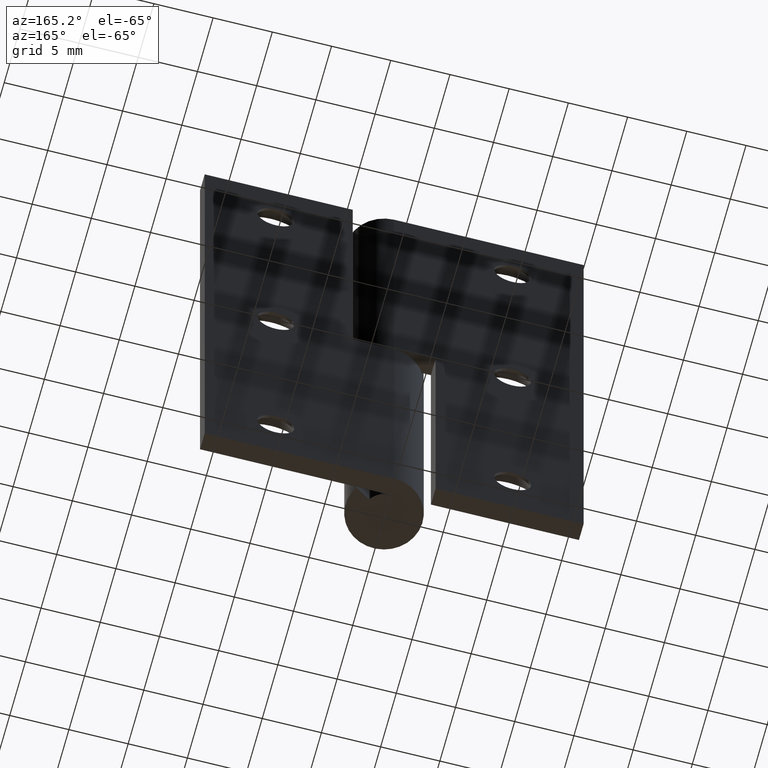
[diagram: clean part render]
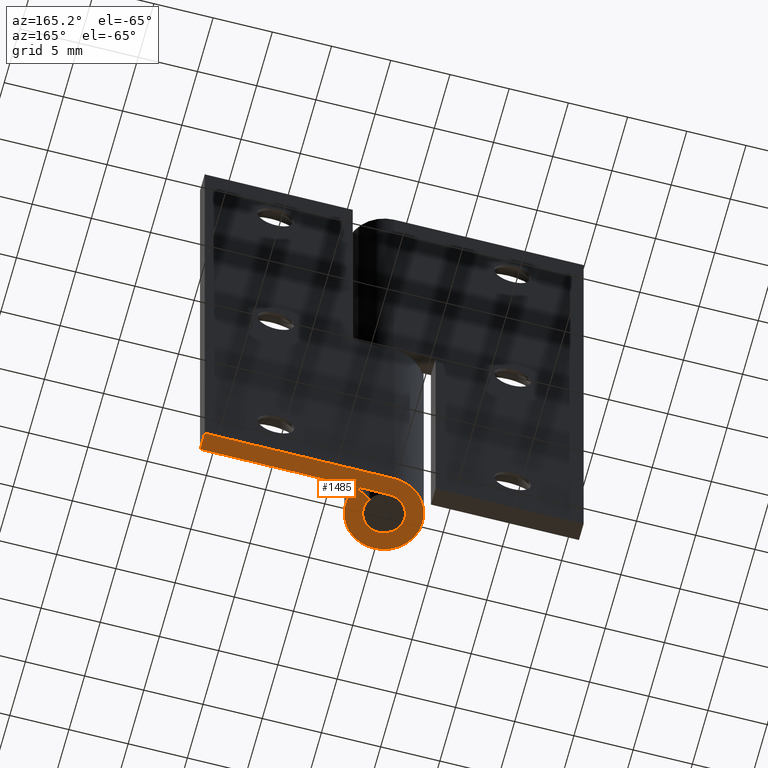
[diagram: same view with one face highlighted and labeled with its STEP entity id]
A machine part, auxiliary view. The second image highlights one B-rep face of the part: STEP entity #1485.
In plain terms, the highlighted face is a freeform B-spline surface patch.
Its self-contained STEP definition (entity closure, byte-faithful):
#1408=CARTESIAN_POINT('',(-4.211426801489212,-3.574232181956067,0.0));
#1409=CARTESIAN_POINT('',(16.961532714450279,-3.574232181956067,0.0));
#1410=CARTESIAN_POINT('',(-4.211426801489212,3.574654095844021,0.0));
#1411=CARTESIAN_POINT('',(16.961532714450279,3.574654095844021,0.0));
#1412=B_SPLINE_SURFACE_WITH_KNOTS('',1,1,((#1408,#1410),(#1409,#1411)),.UNSPECIFIED.,.F.,.F.,.U.,(2,2),(2,2),(0.0,21.172959515939489),(0.0,7.148886277800087),.UNSPECIFIED.);
#1413=CARTESIAN_POINT('',(1.491499582942338,0.915384615384612,0.0));
#1414=VERTEX_POINT('',#1413);
#1415=CARTESIAN_POINT('',(0.0,1.750000000000000,0.0));
#1416=VERTEX_POINT('',#1415);
#1417=CARTESIAN_POINT('',(1.491499582942338,0.915384615384611,0.0));
#1418=CARTESIAN_POINT('',(2.198794235805372,-0.237059572591301,0.0));
#1419=CARTESIAN_POINT('',(1.262110806631847,-1.212260826630602,0.0));
#1420=CARTESIAN_POINT('',(0.325427377458321,-2.187462080669903,0.0));
#1421=CARTESIAN_POINT('',(-0.854569167205595,-1.527157993942190,0.0));
#1422=CARTESIAN_POINT('',(-2.034565711869512,-0.866853907214478,0.0));
#1423=CARTESIAN_POINT('',(-1.693373332936189,0.441573046392761,0.0));
#1424=CARTESIAN_POINT('',(-1.352180954002866,1.750000000000000,0.0));
#1425=CARTESIAN_POINT('',(0.0,1.750000000000000,0.0));
#1433=(BOUNDED_CURVE()B_SPLINE_CURVE(2,(#1417,#1418,#1419,#1420,#1421,#1422,#1423,#1424,#1425),.UNSPECIFIED.,.F.,.U.)B_SPLINE_CURVE_WITH_KNOTS((3,2,2,2,3),(0.0,0.250000000000000,0.500000000000000,0.750000000000000,1.0),.UNSPECIFIED.)CURVE()GEOMETRIC_REPRESENTATION_ITEM()RATIONAL_B_SPLINE_CURVE((1.0,0.791305078677490,1.0,0.791305078677490,1.0,0.791305078677490,1.0,0.791305078677490,1.0))REPRESENTATION_ITEM(''));
#1434=EDGE_CURVE('',#1414,#1416,#1433,.T.);
#1435=ORIENTED_EDGE('',*,*,#1434,.F.);
#1436=CARTESIAN_POINT('',(2.769927796892915,1.700000000000000,0.0));
#1437=VERTEX_POINT('',#1436);
#1438=CARTESIAN_POINT('',(2.769927796892915,1.700000000000000,0.0));
#1439=CARTESIAN_POINT('',(1.491499582942338,0.915384615384612,0.0));
#1440=QUASI_UNIFORM_CURVE('',1,(#1438,#1439),.UNSPECIFIED.,.F.,.U.);
#1441=EDGE_CURVE('',#1437,#1414,#1440,.T.);
#1442=ORIENTED_EDGE('',*,*,#1441,.F.);
#1443=CARTESIAN_POINT('',(0.0,3.250000000000000,0.0));
#1444=VERTEX_POINT('',#1443);
#1445=CARTESIAN_POINT('',(2.769927796892910,1.699999999999998,0.0));
#1446=CARTESIAN_POINT('',(4.083475009352835,-0.440253491955265,0.0));
#1447=CARTESIAN_POINT('',(2.343920069459148,-2.251341535171113,0.0));
#1448=CARTESIAN_POINT('',(0.604365129565461,-4.062429578386961,0.0));
#1449=CARTESIAN_POINT('',(-1.587057024810386,-2.836150560178357,0.0));
#1450=CARTESIAN_POINT('',(-3.778479179186236,-1.609871541969749,0.0));
#1451=CARTESIAN_POINT('',(-3.144836189738637,0.820064229015126,0.0));
#1452=CARTESIAN_POINT('',(-2.511193200291038,3.250000000000000,0.0));
#1453=CARTESIAN_POINT('',(0.0,3.250000000000000,0.0));
#1461=(BOUNDED_CURVE()B_SPLINE_CURVE(2,(#1445,#1446,#1447,#1448,#1449,#1450,#1451,#1452,#1453),.UNSPECIFIED.,.F.,.U.)B_SPLINE_CURVE_WITH_KNOTS((3,2,2,2,3),(0.0,0.250000000000000,0.500000000000000,0.750000000000000,1.0),.UNSPECIFIED.)CURVE()GEOMETRIC_REPRESENTATION_ITEM()RATIONAL_B_SPLINE_CURVE((1.0,0.791305078677490,1.0,0.791305078677490,1.0,0.791305078677490,1.0,0.791305078677490,1.0))REPRESENTATION_ITEM(''));
#1462=EDGE_CURVE('',#1437,#1444,#1461,.T.);
#1463=ORIENTED_EDGE('',*,*,#1462,.T.);
#1464=CARTESIAN_POINT('',(16.0,3.250000000000000,0.0));
#1465=VERTEX_POINT('',#1464);
#1466=CARTESIAN_POINT('',(16.0,3.250000000000000,0.0));
#1467=CARTESIAN_POINT('',(0.0,3.250000000000000,0.0));
#1468=QUASI_UNIFORM_CURVE('',1,(#1466,#1467),.UNSPECIFIED.,.F.,.U.);
#1469=EDGE_CURVE('',#1465,#1444,#1468,.T.);
#1470=ORIENTED_EDGE('',*,*,#1469,.F.);
#1471=CARTESIAN_POINT('',(16.0,1.750000000000000,0.0));
#1472=VERTEX_POINT('',#1471);
#1473=CARTESIAN_POINT('',(16.0,1.750000000000000,0.0));
#1474=CARTESIAN_POINT('',(16.0,3.250000000000000,0.0));
#1475=QUASI_UNIFORM_CURVE('',1,(#1473,#1474),.UNSPECIFIED.,.F.,.U.);
#1476=EDGE_CURVE('',#1472,#1465,#1475,.T.);
#1477=ORIENTED_EDGE('',*,*,#1476,.F.);
#1478=CARTESIAN_POINT('',(0.0,1.750000000000000,0.0));
#1479=CARTESIAN_POINT('',(16.0,1.750000000000000,0.0));
#1480=QUASI_UNIFORM_CURVE('',1,(#1478,#1479),.UNSPECIFIED.,.F.,.U.);
#1481=EDGE_CURVE('',#1416,#1472,#1480,.T.);
#1482=ORIENTED_EDGE('',*,*,#1481,.F.);
#1483=EDGE_LOOP('',(#1435,#1442,#1463,#1470,#1477,#1482));
#1484=FACE_OUTER_BOUND('',#1483,.T.);
#1485=ADVANCED_FACE('',(#1484),#1412,.F.);